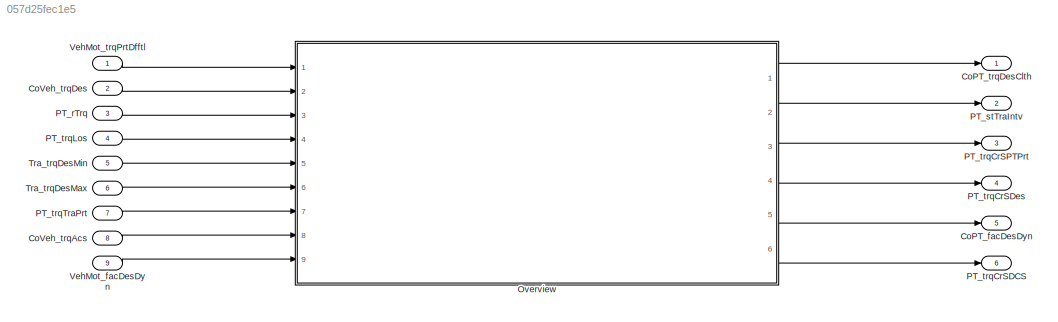
MODEL slx_057d25fec1e5
KIND model
CONFIG AbsTol = auto
CONFIG EnableMultiTasking = off
CONFIG FixedStep = auto
CONFIG MaxStep = auto
CONFIG MinStep = auto
CONFIG RelTol = 1e-3
CONFIG SampleTimeConstraint = Unconstrained
CONFIG Solver = VariableStepAuto
CONFIG SolverName = VariableStepAuto
CONFIG StartTime = 0.0
CONFIG StopTime = 10.0
BLOCK [Outport] CoPT_facDesDyn
  IconDisplay = Port number
  Port = 5
BLOCK [Outport] CoPT_trqDesClth
  IconDisplay = Port number
BLOCK [Inport] CoVeh_trqAcs
  IconDisplay = Port number
  Port = 8
BLOCK [Inport] CoVeh_trqDes
  IconDisplay = Port number
  Port = 2
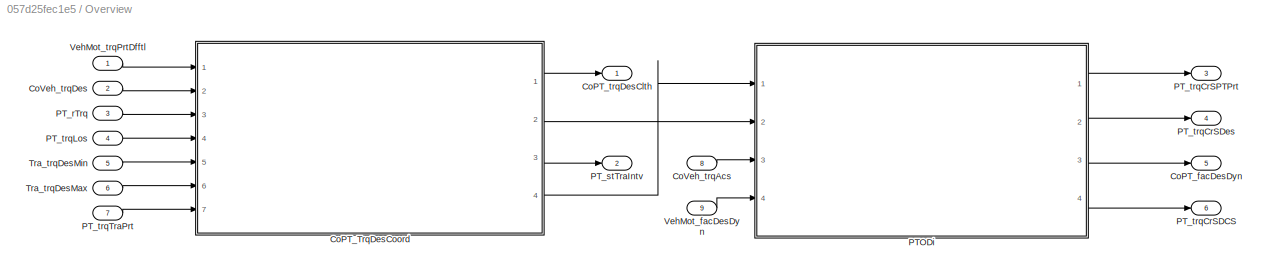
BLOCK [SubSystem] Overview
  Ports = [9, 6]
  RequestExecContextInheritance = off
BLOCK [ModelReference] Overview/CoPT_TrqDesCoord
  ModelNameDialog = CoPT_TrqDesCoord
  ModelReferenceVersion = 1.51
  Ports = [7, 4]
BLOCK [Outport] Overview/CoPT_facDesDyn
  IconDisplay = Port number
  Port = 5
BLOCK [Outport] Overview/CoPT_trqDesClth
  IconDisplay = Port number
BLOCK [Inport] Overview/CoVeh_trqAcs
  IconDisplay = Port number
  Port = 8
BLOCK [Inport] Overview/CoVeh_trqDes
  IconDisplay = Port number
  Port = 2
BLOCK [ModelReference] Overview/PTODi
  ModelNameDialog = PTODi
  ModelReferenceVersion = 1.2
  Ports = [4, 4]
BLOCK [Inport] Overview/PT_rTrq
  IconDisplay = Port number
  Port = 3
BLOCK [Outport] Overview/PT_stTraIntv
  IconDisplay = Port number
  Port = 2
BLOCK [Outport] Overview/PT_trqCrSDCS
  IconDisplay = Port number
  Port = 6
BLOCK [Outport] Overview/PT_trqCrSDes
  IconDisplay = Port number
  Port = 4
BLOCK [Outport] Overview/PT_trqCrSPTPrt
  IconDisplay = Port number
  Port = 3
BLOCK [Inport] Overview/PT_trqLos
  IconDisplay = Port number
  Port = 4
BLOCK [Inport] Overview/PT_trqTraPrt
  IconDisplay = Port number
  Port = 7
BLOCK [Inport] Overview/Tra_trqDesMax
  IconDisplay = Port number
  Port = 6
BLOCK [Inport] Overview/Tra_trqDesMin
  IconDisplay = Port number
  Port = 5
BLOCK [Inport] Overview/VehMot_facDesDyn
  IconDisplay = Port number
  Port = 9
BLOCK [Inport] Overview/VehMot_trqPrtDfftl
  IconDisplay = Port number
BLOCK [Inport] PT_rTrq
  IconDisplay = Port number
  Port = 3
BLOCK [Outport] PT_stTraIntv
  IconDisplay = Port number
  Port = 2
BLOCK [Outport] PT_trqCrSDCS
  IconDisplay = Port number
  Port = 6
BLOCK [Outport] PT_trqCrSDes
  IconDisplay = Port number
  Port = 4
BLOCK [Outport] PT_trqCrSPTPrt
  IconDisplay = Port number
  Port = 3
BLOCK [Inport] PT_trqLos
  IconDisplay = Port number
  Port = 4
BLOCK [Inport] PT_trqTraPrt
  IconDisplay = Port number
  Port = 7
BLOCK [Inport] Tra_trqDesMax
  IconDisplay = Port number
  Port = 6
BLOCK [Inport] Tra_trqDesMin
  IconDisplay = Port number
  Port = 5
BLOCK [Inport] VehMot_facDesDyn
  IconDisplay = Port number
  Port = 9
BLOCK [Inport] VehMot_trqPrtDfftl
  IconDisplay = Port number
LINE CoVeh_trqAcs:1 -> Overview:8
LINE CoVeh_trqDes:1 -> Overview:2
LINE Overview/CoPT_TrqDesCoord:1 -> Overview/CoPT_trqDesClth:1
LINE Overview/CoPT_TrqDesCoord:2 -> Overview/PTODi:2
LINE Overview/CoPT_TrqDesCoord:3 -> Overview/PT_stTraIntv:1
LINE Overview/CoPT_TrqDesCoord:4 -> Overview/PTODi:1
LINE Overview/CoVeh_trqAcs:1 -> Overview/PTODi:3
LINE Overview/CoVeh_trqDes:1 -> Overview/CoPT_TrqDesCoord:2
LINE Overview/PTODi:1 -> Overview/PT_trqCrSPTPrt:1
LINE Overview/PTODi:2 -> Overview/PT_trqCrSDes:1
LINE Overview/PTODi:3 -> Overview/CoPT_facDesDyn:1
LINE Overview/PTODi:4 -> Overview/PT_trqCrSDCS:1
LINE Overview/PT_rTrq:1 -> Overview/CoPT_TrqDesCoord:3
LINE Overview/PT_trqLos:1 -> Overview/CoPT_TrqDesCoord:4
LINE Overview/PT_trqTraPrt:1 -> Overview/CoPT_TrqDesCoord:7
LINE Overview/Tra_trqDesMax:1 -> Overview/CoPT_TrqDesCoord:6
LINE Overview/Tra_trqDesMin:1 -> Overview/CoPT_TrqDesCoord:5
LINE Overview/VehMot_facDesDyn:1 -> Overview/PTODi:4
LINE Overview/VehMot_trqPrtDfftl:1 -> Overview/CoPT_TrqDesCoord:1
LINE Overview:1 -> CoPT_trqDesClth:1
LINE Overview:2 -> PT_stTraIntv:1
LINE Overview:3 -> PT_trqCrSPTPrt:1
LINE Overview:4 -> PT_trqCrSDes:1
LINE Overview:5 -> CoPT_facDesDyn:1
LINE Overview:6 -> PT_trqCrSDCS:1
LINE PT_rTrq:1 -> Overview:3
LINE PT_trqLos:1 -> Overview:4
LINE PT_trqTraPrt:1 -> Overview:7
LINE Tra_trqDesMax:1 -> Overview:6
LINE Tra_trqDesMin:1 -> Overview:5
LINE VehMot_facDesDyn:1 -> Overview:9
LINE VehMot_trqPrtDfftl:1 -> Overview:1
